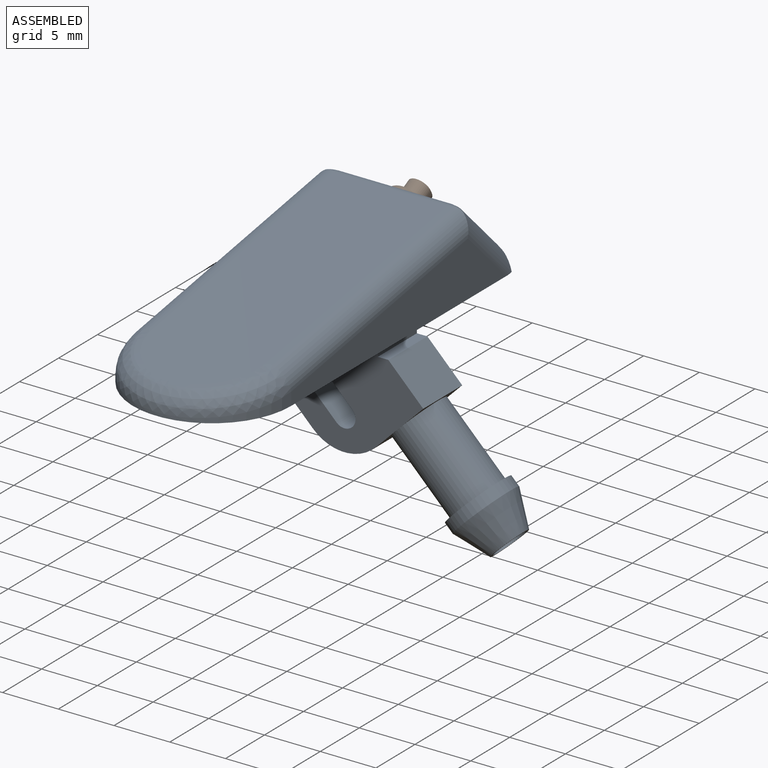
[diagram: assembled view]
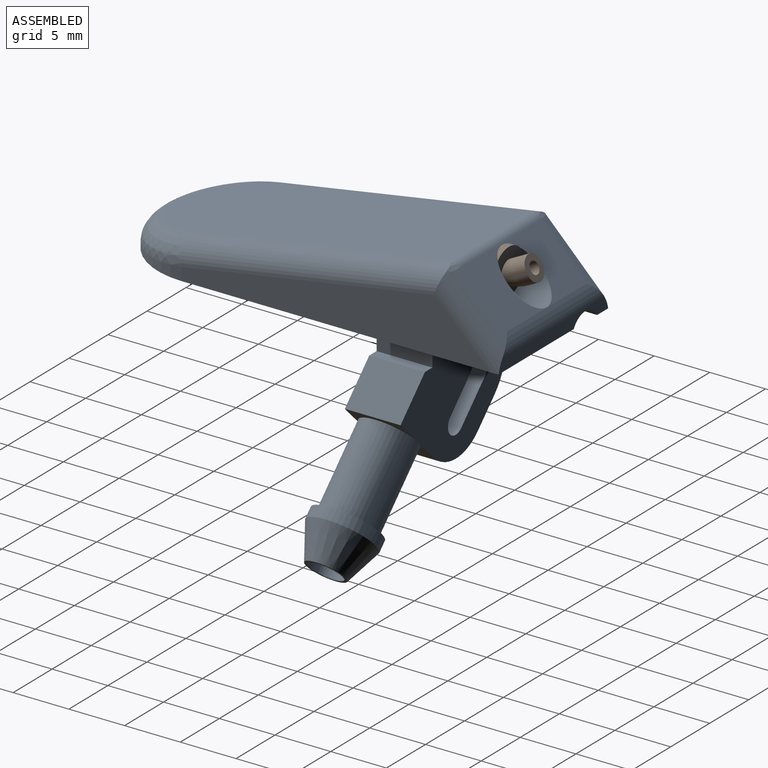
[diagram: assembled view, second angle]
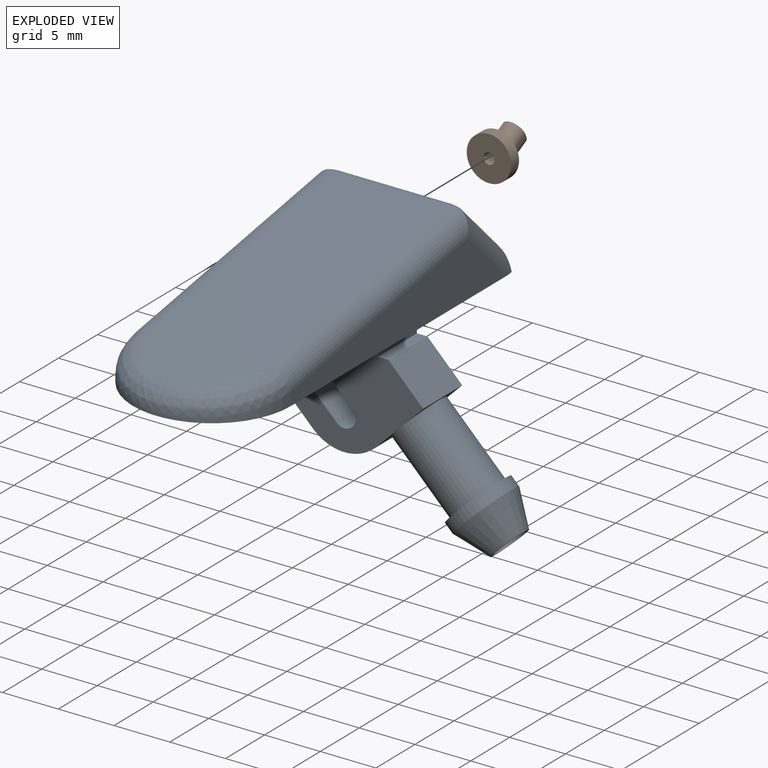
[diagram: exploded view]
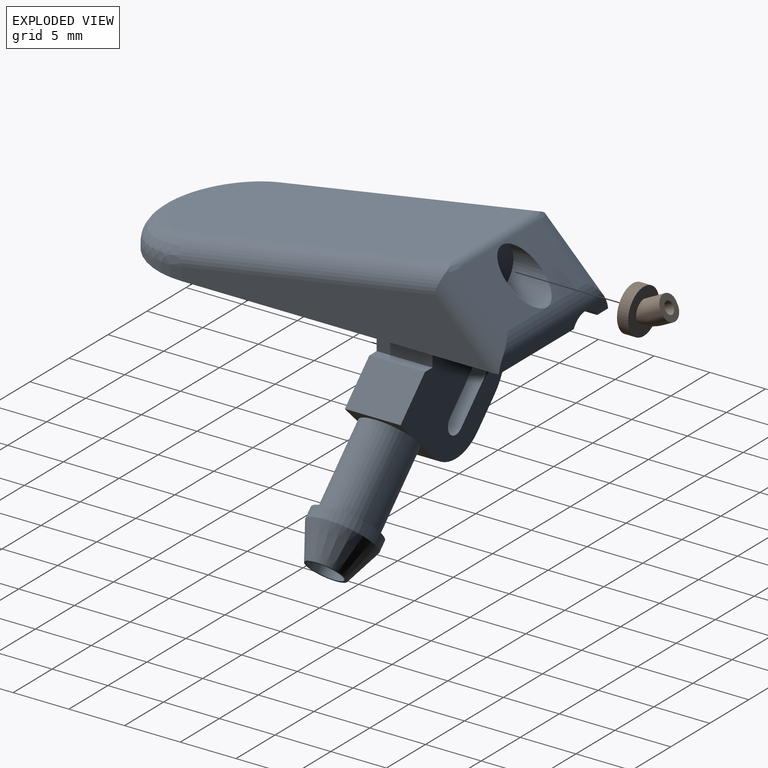
[diagram: exploded view, second angle]
ASSEMBLY  parts=2 mates=2
PART A: 77 faces, bbox 22.8x36.8x24.6 mm
  f0: cylinder r=5mm len=5mm, axis (0,-1,0), area 16.8mm2, adj f1,f2,f74,f75
  f1: plane 14.27x11.24mm, normal (0,1,0), area 72mm2, adj f0,f7,f9,f29,f30,f31,f32,f35
  f2: plane 14.27x11.24mm, normal (0,-1,0), area 72mm2, adj f0,f7,f9,f29,f30,f31,f32,f35
  f3: plane 5x0.7mm, normal (0,0,-1), area 3.5mm2, adj f8,f33,f54,f61
  f4: cone r=2mm half-angle=1.3deg, axis (0,1,0.09), area 45mm2, adj f5,f6,f50,f51,f52
  f5: cylinder r=1.5mm len=9.51mm, axis (0,0,1), area 66.8mm2, adj f4,f6,f46,f47,f50,f51
  f6: cylinder r=1.5mm len=0.33mm, axis (0,0,1), area 0mm2, adj f4,f5,f50
  f7: plane 5x2.12mm, normal (0.71,0,-0.71), area 5.2mm2, adj f1,f2,f29,f42
  f8: plane 5x1.82mm, normal (-1,0,0), area 9.1mm2, adj f3,f54,f61,f76
  f9: plane 35.51x14.21mm, normal (0,0,-1), area 382.4mm2, adj f1,f2,f10,f11,f12,f16,f17,f21
  f10: plane 14.09x1.23mm, normal (0,1,0), area 14mm2, adj f9,f17,f19,f21,f33
  f11: plane 27.57x4.93mm, normal (-1,0,0), area 81mm2, adj f9,f16,f21,f22
  f12: plane 27.57x4.93mm, normal (1,0,0), area 81mm2, adj f9,f16,f17,f18
  f13: plane 10.26x0mm, normal (0,0,1), area 0mm2, adj f23,f24,f25,f26,f27,f28
  f14: plane 10.2x4.12mm, normal (0,0.71,0.71), area 41.7mm2, adj f17,f19,f21,f24,f53
  f15: plane 28.25x10.2mm, normal (0,-0.16,0.99), area 280.8mm2, adj f18,f20,f22,f27
  f16: cylinder r=7.1mm len=14.2mm, axis (0,0,1), area 13.7mm2, adj f9,f11,f12,f20
  f17: cylinder r=2mm len=7.3mm, axis (0,0.71,-0.71), area 22.3mm2, adj f9,f10,f12,f14,f18,f19,f23
  f18: cylinder r=2mm len=23.78mm, axis (0,-0.99,-0.16), area 73.8mm2, adj f12,f15,f17,f20,f23,f25
  f19: cylinder r=2mm len=13.03mm, axis (-1,0,0), area 18.2mm2, adj f10,f14,f17,f21
  f20: bspline ~14.22x8.33mm, area 58.5mm2, adj f15,f16,f18,f22
  f21: cylinder r=2mm len=7.3mm, axis (0,0.71,-0.71), area 22.3mm2, adj f9,f10,f11,f14,f19,f22,f26
  f22: cylinder r=2mm len=23.78mm, axis (0,-0.99,-0.16), area 73.8mm2, adj f11,f15,f20,f21,f26,f28
  f23: bspline ~1.33x1.07mm, area 0.7mm2, adj f13,f17,f18,f24,f25
  f24: cylinder r=1mm len=10.2mm, axis (1,0,0), area 8mm2, adj f13,f14,f23,f26
  f25: bspline ~0.85x0.73mm, area 0.1mm2, adj f13,f18,f23,f27
  f26: bspline ~1.33x1.07mm, area 0.7mm2, adj f13,f21,f22,f24,f28
  f27: cylinder r=1mm len=10.2mm, axis (1,0,0), area 1.7mm2, adj f13,f15,f25,f28
  f28: bspline ~0.85x0.73mm, area 0.1mm2, adj f13,f22,f26,f27
  f29: plane 5x3.13mm, normal (0.71,0,0.71), area 22.1mm2, adj f1,f2,f7,f71
  f30: plane 5x2.12mm, normal (0.71,0,-0.71), area 5.2mm2, adj f1,f2,f32,f42
  f31: plane 5x2.13mm, normal (-0.71,0,-0.71), area 15.1mm2, adj f1,f2,f32,f41
  f32: cylinder r=4mm len=5.66mm, axis (0,-1,0), area 31.4mm2, adj f1,f2,f30,f31
  f33: cylinder r=1.7mm len=13.5mm, axis (0,1,0), area 49.6mm2, adj f3,f9,f10,f34,f57,f62
  f34: plane 3x0.9mm, normal (0,1,0), area 1.9mm2, adj f9,f33
  f35: plane 5x3.2mm, normal (-0.95,0,-0.3), area 16.8mm2, adj f1,f2,f36,f41
  f36: plane 5x1.5mm, normal (0,0,1), area 7.5mm2, adj f1,f2,f35,f37
  f37: plane 5x0.75mm, normal (-1,0,0), area 3.8mm2, adj f1,f2,f36,f38
  f38: plane 5x1.95mm, normal (-0.97,0,0.25), area 10.1mm2, adj f1,f2,f37,f39
  f39: plane 5x1.87mm, normal (1,0,0), area 9.4mm2, adj f1,f2,f38,f40
  f40: cylinder r=5mm len=5mm, axis (0,-1,0), area 4.3mm2, adj f1,f2,f39,f75
  f41: cylinder r=5mm len=5mm, axis (0,-1,0), area 12mm2, adj f1,f2,f31,f35
  f42: cylinder r=2.5mm len=8.84mm, axis (-0.71,0,0.71), area 117.8mm2, adj f7,f30,f45
  f43: cylinder r=3mm len=6mm, axis (-0.71,0,0.71), area 18.8mm2, adj f45,f49
  f44: plane 3.5x2.48mm, normal (0.71,0,-0.71), area 2.6mm2, adj f48,f49
  f45: plane 6x4.24mm, normal (-0.71,0,0.71), area 8.6mm2, adj f42,f43
  f46: plane 3x1.5mm, normal (-0.71,0,0.71), area 1.5mm2, adj f5,f48
  f47: plane 3x1.5mm, normal (-0.71,0,0.71), area 1.5mm2, adj f5,f48
  f48: cylinder r=1.5mm len=15.2mm, axis (-0.71,0,0.71), area 174.4mm2, adj f44,f46,f47
  f49: cone r=1.75mm half-angle=22.6deg, axis (-0.71,0,0.71), area 48.5mm2, adj f43,f44
  f50: plane 3x2.33mm, normal (0,0,-1), area 5mm2, adj f4,f5,f6
  f51: plane 2.62x2.01mm, normal (0,1,0.09), area 3.1mm2, adj f4,f5
  f52: plane 4.07x4.07mm, normal (0,1,0), area 6.9mm2, adj f4,f53
  f53: cylinder r=2mm len=4.4mm, axis (0,1,0), area 30.2mm2, adj f14,f52
  f54: plane 2.83x0.8mm, normal (0,1,0), area 1.7mm2, adj f3,f8,f57,f65,f76
  f55: plane 2.5x1.5mm, normal (1,0,0), area 3.7mm2, adj f2,f9,f56,f64
  f56: plane 5.2x1.5mm, normal (0,-1,0), area 7.8mm2, adj f9,f55,f57,f66
  f57: plane 2.5x1.5mm, normal (-1,0,0), area 3.7mm2, adj f9,f33,f54,f56,f65
  f58: plane 2.2x1mm, normal (0,0,-1), area 2.2mm2, adj f2,f64,f65,f66
  f59: plane 5.2x1.5mm, normal (0,1,0), area 7.8mm2, adj f9,f60,f62,f68
  f60: plane 2.5x1.5mm, normal (1,0,0), area 3.7mm2, adj f1,f9,f59,f69
  f61: plane 2.83x0.8mm, normal (0,-1,0), area 1.7mm2, adj f3,f8,f62,f67,f76
  f62: plane 2.5x1.5mm, normal (-1,0,0), area 3.7mm2, adj f33,f59,f61,f67
  f63: plane 2.2x1mm, normal (0,0,-1), area 2.2mm2, adj f1,f67,f68,f69
  f64: cylinder r=1.5mm len=2.5mm, axis (0,1,0), area 4.1mm2, adj f2,f55,f58,f66
  f65: cylinder r=1.5mm len=2.5mm, axis (0,-1,0), area 4.1mm2, adj f2,f54,f57,f58,f66
  f66: cylinder r=1.5mm len=5.2mm, axis (1,0,0), area 8.7mm2, adj f56,f58,f64,f65
  f67: cylinder r=1.5mm len=2.5mm, axis (0,-1,0), area 4.1mm2, adj f1,f61,f62,f63,f68
  f68: cylinder r=1.5mm len=5.2mm, axis (-1,0,0), area 8.7mm2, adj f59,f63,f67,f69
  f69: cylinder r=1.5mm len=2.5mm, axis (0,1,0), area 4.1mm2, adj f1,f60,f63,f68
  f70: plane 5x2.7mm, normal (1,0,0), area 13.5mm2, adj f1,f2,f9,f71
  f71: plane 5x0.94mm, normal (0,0,1), area 4.7mm2, adj f1,f2,f29,f70
  f72: plane 5x2.24mm, normal (-0.71,0,-0.71), area 15.9mm2, adj f1,f2,f73,f76
  f73: cylinder r=1mm len=5mm, axis (0,1,0), area 15.7mm2, adj f1,f2,f72,f74
  f74: plane 5x2.95mm, normal (0.71,0,0.71), area 20.8mm2, adj f0,f1,f2,f73
  f75: plane 5x0.37mm, normal (0.99,0,0.11), area 1.9mm2, adj f0,f1,f2,f40
  f76: cylinder r=5mm len=5mm, axis (0,-1,0), area 19.6mm2, adj f1,f2,f8,f54,f61,f72
PART B: 12 faces, bbox 4x3.8x4 mm
  f0: cylinder r=0.5mm len=1.76mm, axis (0,1,0), area 4.7mm2, adj f2,f6
  f1: cylinder r=2mm len=4mm, axis (0,1,0), area 12.6mm2, adj f2,f3
  f2: plane 4x4mm, normal (0,-1,0), area 11.8mm2, adj f0,f1
  f3: plane 4x4mm, normal (0,1,0), area 9.5mm2, adj f1,f8,f11
  f4: plane 2.09x1.01mm, normal (1,0,0), area 0.4mm2, adj f7,f9,f10,f11
  f5: plane 2.09x1.01mm, normal (-1,0,0), area 0.4mm2, adj f7,f9,f10,f11
  f6: extruded ~2.29x1.91mm, area 6.7mm2, adj f0,f7
  f7: plane 2x2mm, normal (0,0.89,0.45), area 2.7mm2, adj f4,f5,f6,f10,f11
  f8: cylinder r=1mm len=2mm, axis (0,-1,0), area 0.2mm2, adj f3,f9,f11
  f9: torus R=3mm, axis (-1,0,0), area 5.4mm2, adj f4,f5,f8,f10,f11
  f10: cylinder r=1mm len=2mm, axis (0,0.89,0.45), area 3.3mm2, adj f4,f5,f7,f9
  f11: cylinder r=1mm len=2.66mm, axis (0,0.89,0.45), area 6.8mm2, adj f3,f4,f5,f7,f8,f9
PLACE A t=(9.31,-12.61,14.13)mm
PLACE B rot(axis=(-0.03,0.98,-0.19),0deg) t=(-4.65,15.7,8.7)mm
MATE cylindrical A.f53 <-> B.f0  axis (0,1,0) through (3.88,16.91,18.73)mm
MATE planar A.f52 <-> B.f0  axis (0,1,0) through (3.88,14.7,18.87)mm
